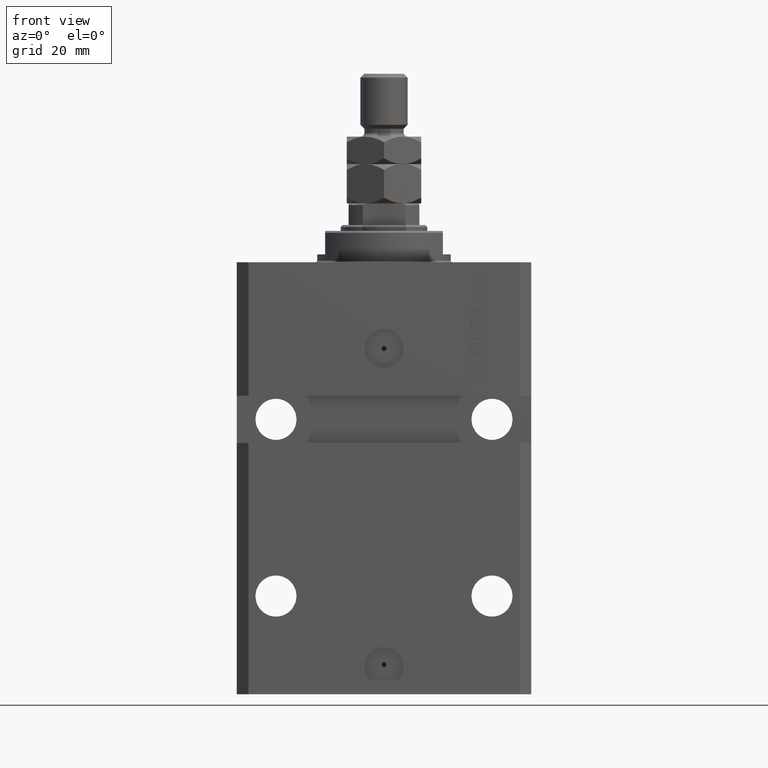
[diagram: clean part render]
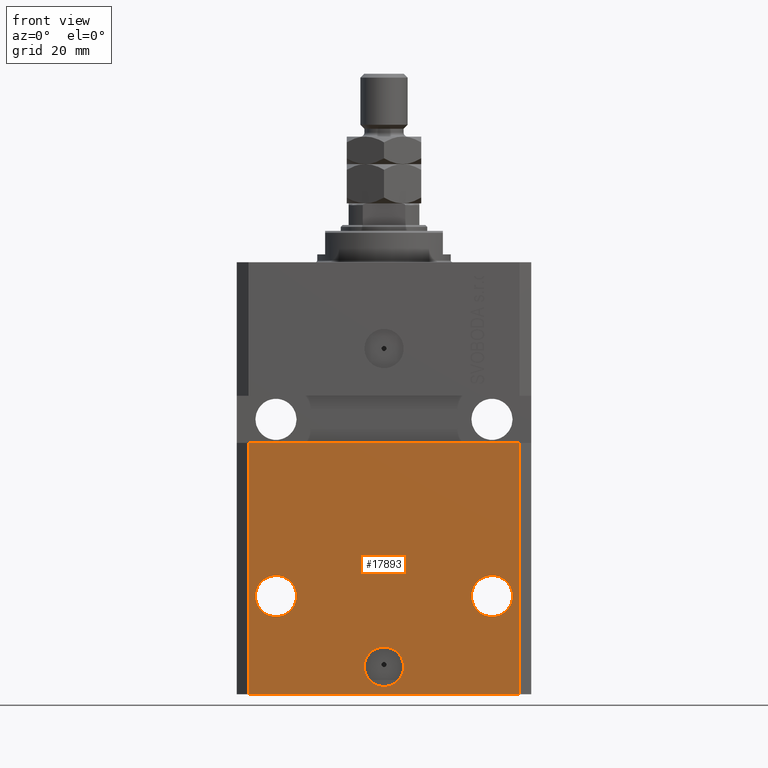
[diagram: same view with one face highlighted and labeled with its STEP entity id]
A machine part, front view. The second image highlights one B-rep face of the part: STEP entity #17893.
In plain terms, the highlighted planar face has unit normal (0, -1, 0).
Its self-contained STEP definition (entity closure, byte-faithful):
#188 = CARTESIAN_POINT ( 'NONE',  ( -34.49999999999998579, -27.49999999999999645, -110.0000000000000000 ) ) ;
#296 = DIRECTION ( 'NONE',  ( -1.000000000000000000, 0.000000000000000000, 0.000000000000000000 ) ) ;
#415 = CIRCLE ( 'NONE', #14767, 5.249999999999994671 ) ;
#892 = AXIS2_PLACEMENT_3D ( 'NONE', #32825, #16809, #24818 ) ;
#1298 = CARTESIAN_POINT ( 'NONE',  ( 0.000000000000000000, -27.49999999999999645, -103.0000000000000000 ) ) ;
#3030 = CARTESIAN_POINT ( 'NONE',  ( -5.000000000000006217, -27.49999999999999645, -103.0000000000000000 ) ) ;
#3256 = LINE ( 'NONE', #11237, #43299 ) ;
#3327 = CIRCLE ( 'NONE', #31297, 5.249999999999994671 ) ;
#3935 = ORIENTED_EDGE ( 'NONE', *, *, #9267, .F. ) ;
#4216 = EDGE_LOOP ( 'NONE', ( #13075, #27306 ) ) ;
#4527 = EDGE_CURVE ( 'NONE', #41267, #33812, #40806, .T. ) ;
#4694 = DIRECTION ( 'NONE',  ( 0.000000000000000000, 0.000000000000000000, 1.000000000000000000 ) ) ;
#5856 = FACE_BOUND ( 'NONE', #4216, .T. ) ;
#8036 = VERTEX_POINT ( 'NONE', #35861 ) ;
#8428 = LINE ( 'NONE', #46715, #10569 ) ;
#8584 = ORIENTED_EDGE ( 'NONE', *, *, #25908, .F. ) ;
#8789 = DIRECTION ( 'NONE',  ( 1.000000000000000000, 0.000000000000000000, 0.000000000000000000 ) ) ;
#9267 = EDGE_CURVE ( 'NONE', #23225, #11333, #14491, .T. ) ;
#9531 = DIRECTION ( 'NONE',  ( 1.176083712526788232E-16, -1.000000000000000000, 0.000000000000000000 ) ) ;
#9745 = DIRECTION ( 'NONE',  ( 1.000000000000000000, 0.000000000000000000, 0.000000000000000000 ) ) ;
#9839 = EDGE_CURVE ( 'NONE', #47031, #18868, #3256, .T. ) ;
#10569 = VECTOR ( 'NONE', #4694, 1000.000000000000000 ) ;
#10892 = ORIENTED_EDGE ( 'NONE', *, *, #10940, .T. ) ;
#10940 = EDGE_CURVE ( 'NONE', #44670, #8036, #8428, .T. ) ;
#11237 = CARTESIAN_POINT ( 'NONE',  ( -34.49999999999998579, -27.49999999999999645, -110.0000000000000000 ) ) ;
#11333 = VERTEX_POINT ( 'NONE', #28622 ) ;
#12600 = AXIS2_PLACEMENT_3D ( 'NONE', #48593, #33557, #14286 ) ;
#12658 = DIRECTION ( 'NONE',  ( 1.000000000000000000, 0.000000000000000000, 0.000000000000000000 ) ) ;
#13075 = ORIENTED_EDGE ( 'NONE', *, *, #28945, .F. ) ;
#14286 = DIRECTION ( 'NONE',  ( 1.000000000000000000, 0.000000000000000000, 0.000000000000000000 ) ) ;
#14317 = DIRECTION ( 'NONE',  ( 0.000000000000000000, -0.000000000000000000, -1.000000000000000000 ) ) ;
#14491 = CIRCLE ( 'NONE', #48072, 5.000000000000006217 ) ;
#14657 = VECTOR ( 'NONE', #29316, 1000.000000000000000 ) ;
#14767 = AXIS2_PLACEMENT_3D ( 'NONE', #20161, #31686, #12658 ) ;
#15140 = VERTEX_POINT ( 'NONE', #47298 ) ;
#16613 = CARTESIAN_POINT ( 'NONE',  ( -37.50000000000000000, -27.50000000000000000, -46.00000000000000000 ) ) ;
#16809 = DIRECTION ( 'NONE',  ( 1.176083712526788232E-16, -1.000000000000000000, 0.000000000000000000 ) ) ;
#17888 = ORIENTED_EDGE ( 'NONE', *, *, #33739, .T. ) ;
#17893 = ADVANCED_FACE ( 'NONE', ( #24852, #40112, #5856, #33107 ), #21100, .T. ) ;
#18868 = VERTEX_POINT ( 'NONE', #26769 ) ;
#18995 = EDGE_LOOP ( 'NONE', ( #42381, #27172 ) ) ;
#20161 = CARTESIAN_POINT ( 'NONE',  ( 27.50000000000001421, -27.49999999999999289, -84.99999999999998579 ) ) ;
#20294 = CARTESIAN_POINT ( 'NONE',  ( 22.25000000000002132, -27.49999999999999289, -84.99999999999998579 ) ) ;
#20895 = CIRCLE ( 'NONE', #48873, 5.249999999999994671 ) ;
#21100 = PLANE ( 'NONE',  #46801 ) ;
#21396 = CIRCLE ( 'NONE', #12600, 5.000000000000006217 ) ;
#21844 = CARTESIAN_POINT ( 'NONE',  ( -34.49999999999998579, -27.49999999999999645, -110.0000000000000000 ) ) ;
#23023 = CARTESIAN_POINT ( 'NONE',  ( -32.75000000000000711, -27.50000000000000000, -84.99999999999998579 ) ) ;
#23225 = VERTEX_POINT ( 'NONE', #3030 ) ;
#23639 = DIRECTION ( 'NONE',  ( 1.000000000000000000, 9.251858538542972814E-17, -9.251858538542972814E-17 ) ) ;
#23663 = EDGE_LOOP ( 'NONE', ( #41069, #3935 ) ) ;
#24517 = DIRECTION ( 'NONE',  ( 1.176083712526788232E-16, -1.000000000000000000, 0.000000000000000000 ) ) ;
#24818 = DIRECTION ( 'NONE',  ( -1.000000000000000000, 0.000000000000000000, 0.000000000000000000 ) ) ;
#24852 = FACE_BOUND ( 'NONE', #23663, .T. ) ;
#25908 = EDGE_CURVE ( 'NONE', #18868, #8036, #43392, .T. ) ;
#26767 = CARTESIAN_POINT ( 'NONE',  ( 34.49999999999999289, -27.49999999999999645, -110.0000000000000000 ) ) ;
#26769 = CARTESIAN_POINT ( 'NONE',  ( -34.49999999999998579, -27.50000000000000000, -46.00000000000000000 ) ) ;
#27172 = ORIENTED_EDGE ( 'NONE', *, *, #29061, .F. ) ;
#27306 = ORIENTED_EDGE ( 'NONE', *, *, #4527, .F. ) ;
#27363 = LINE ( 'NONE', #44350, #14657 ) ;
#28622 = CARTESIAN_POINT ( 'NONE',  ( 5.000000000000006217, -27.49999999999999645, -103.0000000000000000 ) ) ;
#28945 = EDGE_CURVE ( 'NONE', #33812, #41267, #20895, .T. ) ;
#29061 = EDGE_CURVE ( 'NONE', #31496, #15140, #3327, .T. ) ;
#29316 = DIRECTION ( 'NONE',  ( 1.000000000000000000, 0.000000000000000000, 0.000000000000000000 ) ) ;
#31297 = AXIS2_PLACEMENT_3D ( 'NONE', #47786, #24517, #9745 ) ;
#31496 = VERTEX_POINT ( 'NONE', #20294 ) ;
#31686 = DIRECTION ( 'NONE',  ( 1.176083712526788232E-16, -1.000000000000000000, 0.000000000000000000 ) ) ;
#32176 = EDGE_LOOP ( 'NONE', ( #8584, #36428, #17888, #10892 ) ) ;
#32825 = CARTESIAN_POINT ( 'NONE',  ( -27.50000000000001421, -27.50000000000000000, -84.99999999999998579 ) ) ;
#33107 = FACE_OUTER_BOUND ( 'NONE', #32176, .T. ) ;
#33346 = DIRECTION ( 'NONE',  ( 0.000000000000000000, -1.000000000000000000, 0.000000000000000000 ) ) ;
#33557 = DIRECTION ( 'NONE',  ( 1.176083712526788232E-16, -1.000000000000000000, 0.000000000000000000 ) ) ;
#33739 = EDGE_CURVE ( 'NONE', #47031, #44670, #27363, .T. ) ;
#33760 = VECTOR ( 'NONE', #23639, 1000.000000000000000 ) ;
#33812 = VERTEX_POINT ( 'NONE', #47856 ) ;
#35556 = EDGE_CURVE ( 'NONE', #15140, #31496, #415, .T. ) ;
#35861 = CARTESIAN_POINT ( 'NONE',  ( 34.49999999999999289, -27.49999999999999289, -46.00000000000000711 ) ) ;
#36428 = ORIENTED_EDGE ( 'NONE', *, *, #9839, .F. ) ;
#37526 = DIRECTION ( 'NONE',  ( 0.000000000000000000, 0.000000000000000000, 1.000000000000000000 ) ) ;
#40112 = FACE_BOUND ( 'NONE', #18995, .T. ) ;
#40806 = CIRCLE ( 'NONE', #892, 5.249999999999994671 ) ;
#41069 = ORIENTED_EDGE ( 'NONE', *, *, #45655, .F. ) ;
#41267 = VERTEX_POINT ( 'NONE', #23023 ) ;
#42303 = CARTESIAN_POINT ( 'NONE',  ( -27.50000000000001421, -27.50000000000000000, -84.99999999999998579 ) ) ;
#42381 = ORIENTED_EDGE ( 'NONE', *, *, #35556, .F. ) ;
#43299 = VECTOR ( 'NONE', #37526, 1000.000000000000000 ) ;
#43392 = LINE ( 'NONE', #16613, #33760 ) ;
#44350 = CARTESIAN_POINT ( 'NONE',  ( -34.49999999999998579, -27.49999999999999645, -110.0000000000000000 ) ) ;
#44670 = VERTEX_POINT ( 'NONE', #26767 ) ;
#45655 = EDGE_CURVE ( 'NONE', #11333, #23225, #21396, .T. ) ;
#45809 = DIRECTION ( 'NONE',  ( 1.176083712526788232E-16, -1.000000000000000000, 0.000000000000000000 ) ) ;
#46715 = CARTESIAN_POINT ( 'NONE',  ( 34.49999999999999289, -27.49999999999999645, -110.0000000000000000 ) ) ;
#46801 = AXIS2_PLACEMENT_3D ( 'NONE', #21844, #33346, #14317 ) ;
#47031 = VERTEX_POINT ( 'NONE', #188 ) ;
#47298 = CARTESIAN_POINT ( 'NONE',  ( 32.75000000000000711, -27.49999999999999289, -84.99999999999998579 ) ) ;
#47786 = CARTESIAN_POINT ( 'NONE',  ( 27.50000000000001421, -27.49999999999999289, -84.99999999999998579 ) ) ;
#47856 = CARTESIAN_POINT ( 'NONE',  ( -22.25000000000002132, -27.50000000000000000, -84.99999999999998579 ) ) ;
#48072 = AXIS2_PLACEMENT_3D ( 'NONE', #1298, #9531, #8789 ) ;
#48593 = CARTESIAN_POINT ( 'NONE',  ( 0.000000000000000000, -27.49999999999999645, -103.0000000000000000 ) ) ;
#48873 = AXIS2_PLACEMENT_3D ( 'NONE', #42303, #45809, #296 ) ;